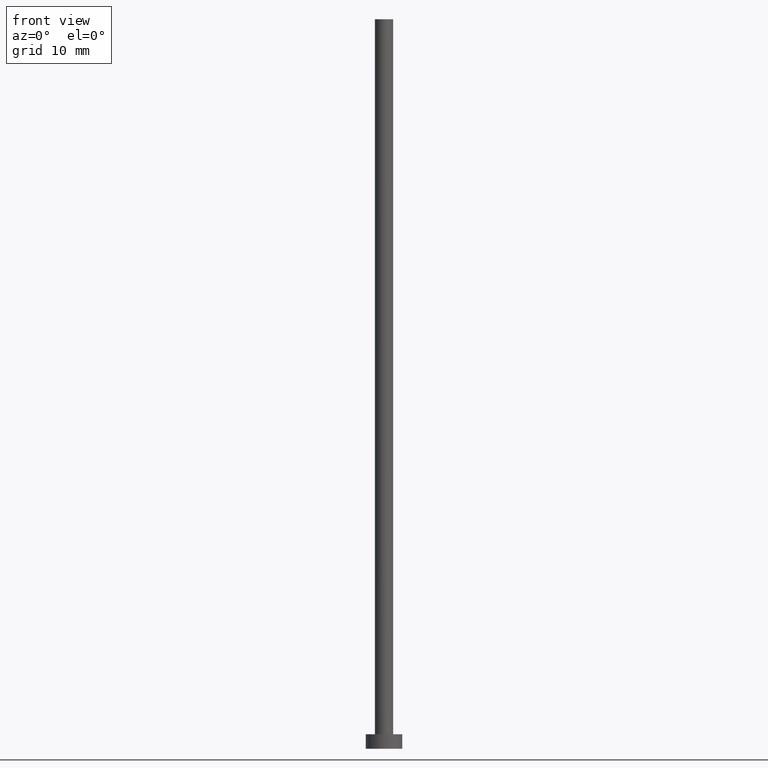
[diagram: clean part render]
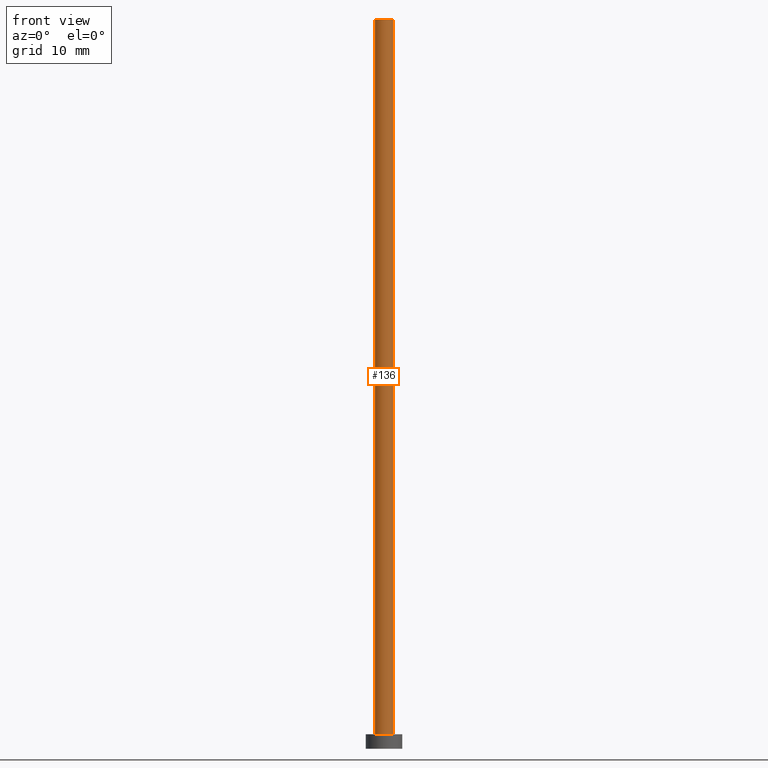
[diagram: same view with one face highlighted and labeled with its STEP entity id]
A machine part, front view. The second image highlights one B-rep face of the part: STEP entity #136.
In plain terms, the highlighted cylindrical surface (edge-blend (fillet) strip) has radius 1.25 mm, axis along (-0, -0, -1).
Its self-contained STEP definition (entity closure, byte-faithful):
#8 = ORIENTED_EDGE ( 'NONE', *, *, #186, .T. ) ;
#22 = VERTEX_POINT ( 'NONE', #223 ) ;
#24 = LINE ( 'NONE', #90, #118 ) ;
#25 = EDGE_LOOP ( 'NONE', ( #64, #162, #8, #155 ) ) ;
#29 = LINE ( 'NONE', #220, #206 ) ;
#30 = DIRECTION ( 'NONE',  ( -1.000000000000000000, 0.000000000000000000, 0.000000000000000000 ) ) ;
#32 = EDGE_CURVE ( 'NONE', #221, #68, #104, .T. ) ;
#64 = ORIENTED_EDGE ( 'NONE', *, *, #230, .F. ) ;
#66 = DIRECTION ( 'NONE',  ( -0.000000000000000000, -0.000000000000000000, -1.000000000000000000 ) ) ;
#68 = VERTEX_POINT ( 'NONE', #74 ) ;
#74 = CARTESIAN_POINT ( 'NONE',  ( 1.250000000000000000, 1.530808498934191571E-16, 100.0000000000000000 ) ) ;
#76 = DIRECTION ( 'NONE',  ( -0.000000000000000000, -0.000000000000000000, -1.000000000000000000 ) ) ;
#90 = CARTESIAN_POINT ( 'NONE',  ( 1.250000000000000000, 1.530808498934191571E-16, 100.0000000000000000 ) ) ;
#92 = VERTEX_POINT ( 'NONE', #189 ) ;
#103 = CARTESIAN_POINT ( 'NONE',  ( 0.000000000000000000, 0.000000000000000000, 100.0000000000000000 ) ) ;
#104 = CIRCLE ( 'NONE', #138, 1.250000000000000000 ) ;
#106 = DIRECTION ( 'NONE',  ( 1.000000000000000000, 0.000000000000000000, 0.000000000000000000 ) ) ;
#109 = AXIS2_PLACEMENT_3D ( 'NONE', #245, #158, #182 ) ;
#113 = FACE_OUTER_BOUND ( 'NONE', #25, .T. ) ;
#118 = VECTOR ( 'NONE', #76, 1000.000000000000000 ) ;
#136 = ADVANCED_FACE ( 'NONE', ( #113 ), #179, .T. ) ;
#138 = AXIS2_PLACEMENT_3D ( 'NONE', #103, #251, #106 ) ;
#155 = ORIENTED_EDGE ( 'NONE', *, *, #175, .T. ) ;
#158 = DIRECTION ( 'NONE',  ( 0.000000000000000000, 0.000000000000000000, 1.000000000000000000 ) ) ;
#162 = ORIENTED_EDGE ( 'NONE', *, *, #32, .F. ) ;
#175 = EDGE_CURVE ( 'NONE', #92, #22, #233, .T. ) ;
#179 = CYLINDRICAL_SURFACE ( 'NONE', #217, 1.250000000000000000 ) ;
#182 = DIRECTION ( 'NONE',  ( 1.000000000000000000, 0.000000000000000000, 0.000000000000000000 ) ) ;
#186 = EDGE_CURVE ( 'NONE', #221, #92, #29, .T. ) ;
#189 = CARTESIAN_POINT ( 'NONE',  ( -1.250000000000000000, 0.000000000000000000, 2.000000000000000000 ) ) ;
#193 = CARTESIAN_POINT ( 'NONE',  ( -1.250000000000000000, 0.000000000000000000, 100.0000000000000000 ) ) ;
#206 = VECTOR ( 'NONE', #244, 1000.000000000000000 ) ;
#217 = AXIS2_PLACEMENT_3D ( 'NONE', #240, #66, #30 ) ;
#220 = CARTESIAN_POINT ( 'NONE',  ( -1.250000000000000000, 0.000000000000000000, 100.0000000000000000 ) ) ;
#221 = VERTEX_POINT ( 'NONE', #193 ) ;
#223 = CARTESIAN_POINT ( 'NONE',  ( 1.250000000000000000, 1.530808498934191571E-16, 2.000000000000000000 ) ) ;
#230 = EDGE_CURVE ( 'NONE', #68, #22, #24, .T. ) ;
#233 = CIRCLE ( 'NONE', #109, 1.250000000000000000 ) ;
#240 = CARTESIAN_POINT ( 'NONE',  ( 0.000000000000000000, 0.000000000000000000, 100.0000000000000000 ) ) ;
#244 = DIRECTION ( 'NONE',  ( -0.000000000000000000, -0.000000000000000000, -1.000000000000000000 ) ) ;
#245 = CARTESIAN_POINT ( 'NONE',  ( 0.000000000000000000, 0.000000000000000000, 2.000000000000000000 ) ) ;
#251 = DIRECTION ( 'NONE',  ( 0.000000000000000000, 0.000000000000000000, 1.000000000000000000 ) ) ;